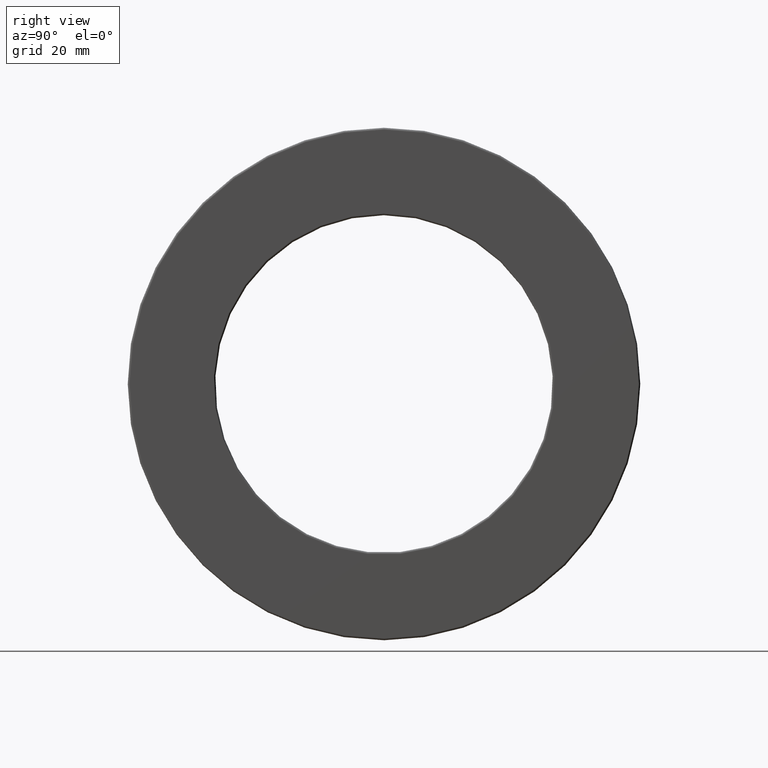
[diagram: clean part render]
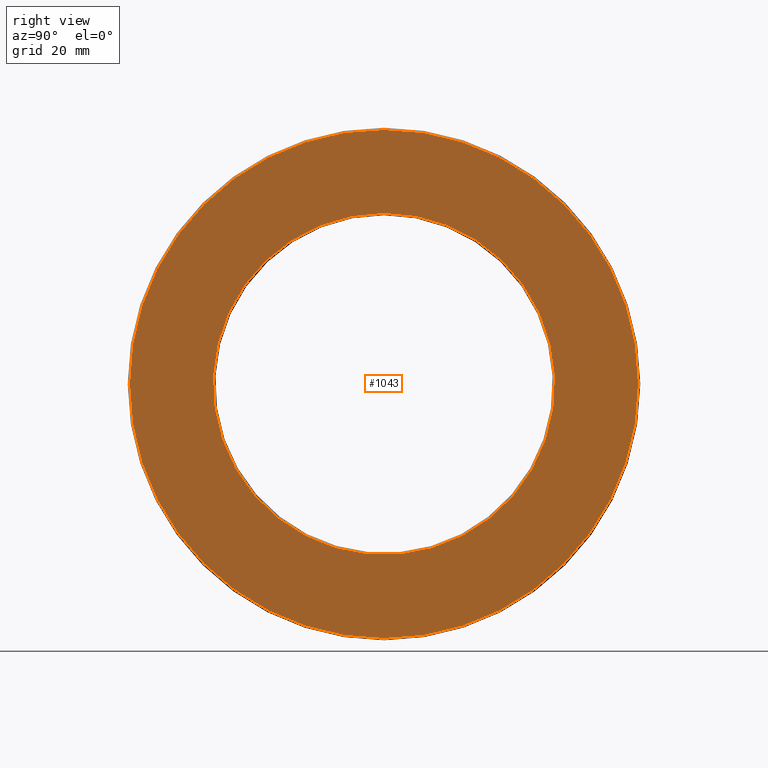
[diagram: same view with one face highlighted and labeled with its STEP entity id]
A machine part, right view. The second image highlights one B-rep face of the part: STEP entity #1043.
In plain terms, the highlighted planar face has unit normal (1, 0, 0).
Its self-contained STEP definition (entity closure, byte-faithful):
#2 = CARTESIAN_POINT ( 'NONE',  ( 0.5000000000000000000, 0.0000000000000000000, 0.0000000000000000000 ) ) ;
#18 = CARTESIAN_POINT ( 'NONE',  ( 0.5000000000000000000, 0.0000000000000000000, 0.0000000000000000000 ) ) ;
#23 = DIRECTION ( 'NONE',  ( 0.0000000000000000000, 0.0000000000000000000, -1.000000000000000000 ) ) ;
#40 = EDGE_LOOP ( 'NONE', ( #547 ) ) ;
#127 = DIRECTION ( 'NONE',  ( -1.000000000000000000, -0.0000000000000000000, -0.0000000000000000000 ) ) ;
#201 = EDGE_LOOP ( 'NONE', ( #1428 ) ) ;
#371 = AXIS2_PLACEMENT_3D ( 'NONE', #2, #916, #23 ) ;
#405 = EDGE_CURVE ( 'NONE', #900, #900, #647, .T. ) ;
#476 = DIRECTION ( 'NONE',  ( -1.000000000000000000, -0.0000000000000000000, -0.0000000000000000000 ) ) ;
#538 = CARTESIAN_POINT ( 'NONE',  ( 0.5000000000000000000, 0.0000000000000000000, 1.738750000000000200 ) ) ;
#547 = ORIENTED_EDGE ( 'NONE', *, *, #405, .F. ) ;
#601 = AXIS2_PLACEMENT_3D ( 'NONE', #815, #127, #678 ) ;
#647 = CIRCLE ( 'NONE', #1327, 2.589375000000000400 ) ;
#678 = DIRECTION ( 'NONE',  ( 0.0000000000000000000, 0.0000000000000000000, 1.000000000000000000 ) ) ;
#697 = DIRECTION ( 'NONE',  ( 0.0000000000000000000, 0.0000000000000000000, 1.000000000000000000 ) ) ;
#720 = VERTEX_POINT ( 'NONE', #538 ) ;
#802 = CIRCLE ( 'NONE', #601, 1.738750000000000200 ) ;
#812 = EDGE_CURVE ( 'NONE', #720, #720, #802, .T. ) ;
#815 = CARTESIAN_POINT ( 'NONE',  ( 0.5000000000000000000, 0.0000000000000000000, 0.0000000000000000000 ) ) ;
#900 = VERTEX_POINT ( 'NONE', #1449 ) ;
#916 = DIRECTION ( 'NONE',  ( 1.000000000000000000, 0.0000000000000000000, 0.0000000000000000000 ) ) ;
#1043 = ADVANCED_FACE ( 'NONE', ( #1197, #1321 ), #1105, .T. ) ;
#1105 = PLANE ( 'NONE',  #371 ) ;
#1197 = FACE_BOUND ( 'NONE', #201, .T. ) ;
#1321 = FACE_OUTER_BOUND ( 'NONE', #40, .T. ) ;
#1327 = AXIS2_PLACEMENT_3D ( 'NONE', #18, #476, #697 ) ;
#1428 = ORIENTED_EDGE ( 'NONE', *, *, #812, .T. ) ;
#1449 = CARTESIAN_POINT ( 'NONE',  ( 0.5000000000000000000, 0.0000000000000000000, 2.589375000000000400 ) ) ;